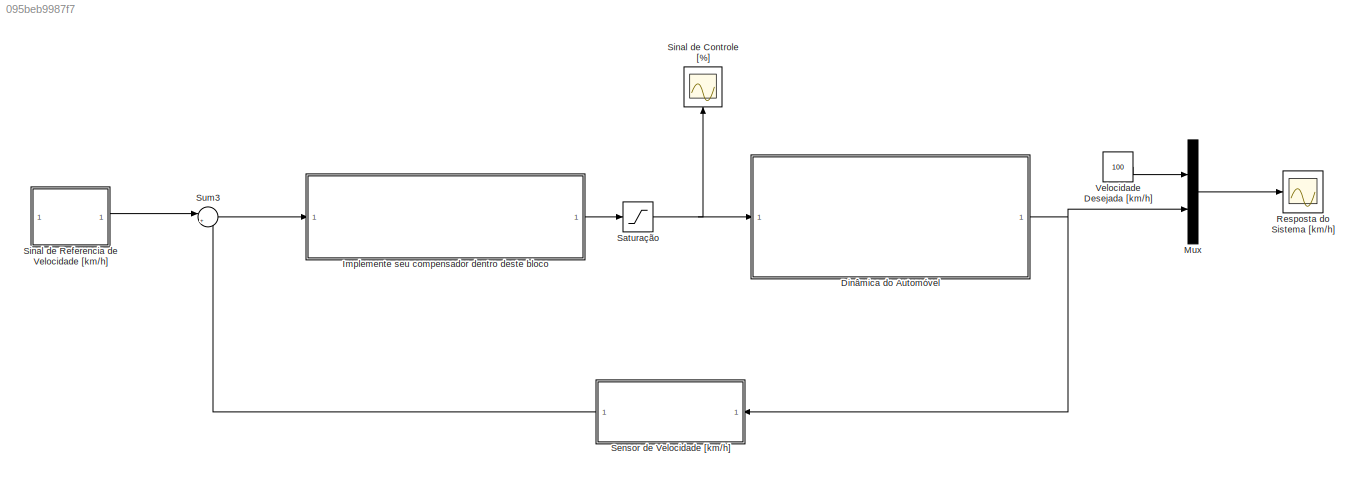
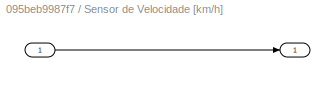
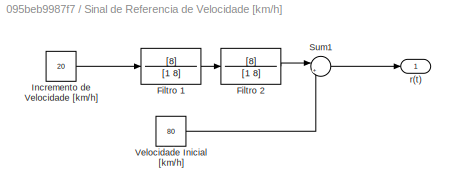
MODEL slx_095beb9987f7
KIND model
CONFIG AbsTol = auto
CONFIG EnableMultiTasking = on
CONFIG FixedStep = 1e-6
CONFIG MaxStep = 1e-3
CONFIG MinStep = auto
CONFIG RelTol = 1e-3
CONFIG SampleTimeConstraint = Unconstrained
CONFIG SolverName = ode45
CONFIG StartTime = 0.0
CONFIG StopTime = 10
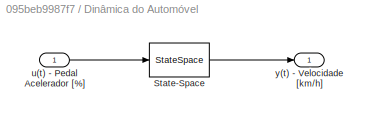
BLOCK [SubSystem] Dinâmica do Automóvel
BLOCK [StateSpace] Dinâmica do Automóvel/State-Space
  A = [0 1\n; -c -b]
  B = [ 0\n ;  a ]
  C = [1  0]
  D = 0
  InitialCondition = [80;0]
BLOCK [Inport] Dinâmica do Automóvel/u(t) - Pedal Acelerador [%]
BLOCK [Outport] Dinâmica do Automóvel/y(t) - Velocidade [km//h]
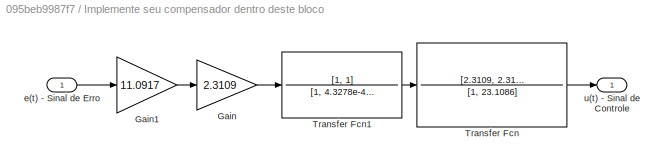
BLOCK [SubSystem] Implemente seu compensador dentro deste bloco
BLOCK [Gain] Implemente seu compensador dentro deste bloco/Gain
  Gain = 2.3109
BLOCK [Gain] Implemente seu compensador dentro deste bloco/Gain1
  Gain = 11.0917
BLOCK [TransferFcn] Implemente seu compensador dentro deste bloco/Transfer Fcn
  Denominator = [1, 23.1086]
  Numerator = [2.3109, 2.3109 * 4.3274]
BLOCK [TransferFcn] Implemente seu compensador dentro deste bloco/Transfer Fcn1
  Denominator = [1, 4.3278e-4]
  Numerator = [1, 1]
BLOCK [Inport] Implemente seu compensador dentro deste bloco/e(t) - Sinal de Erro
BLOCK [Outport] Implemente seu compensador dentro deste bloco/u(t) - Sinal de Controle
BLOCK [Mux] Mux
  DisplayOption = bar
  Inputs = 2
BLOCK [Scope] Resposta do Sistema [km//h] 
  Floating = off
  NumInputPorts = 1
  ScopeSpecificationString = Simulink.scopes.TimeScopeBlockCfg('CurrentConfiguration', extmgr.ConfigurationSet(extmgr.Configuration('Core','General UI',true,'FigureColor',[0.156862745098039 0.156862745098039 0.156862745098039]),extmgr.Configuration('Core','Source UI',true),extmgr.Configuration('Sources','WiredSimulink',true,'DataLoggingVariableName','ScopeData6','DataLoggingSaveFormat','StructureWithTime','DataLoggingDecimati...<+2892ch>
BLOCK [Saturate] Saturação
  LowerLimit = 0
  UpperLimit = 100
BLOCK [SubSystem] Sensor de Velocidade [km//h]
  NameLocation = top
BLOCK [Outport] Sensor de Velocidade [km//h]/ 
BLOCK [Inport] Sensor de Velocidade [km//h]/  
BLOCK [Scope] Sinal de Controle [%]
  Floating = off
  NameLocation = right
  NumInputPorts = 1
  ScopeSpecificationString = C++SS(StrPVP('Open','off'),StrPVP('TimeRange','auto'),StrPVP('TickLabels','OneTimeTick'),StrPVP('ShowLegends','off'),StrPVP('LimitDataPoints','off'),StrPVP('MaxDataPoints','5000'),StrPVP('SaveToWorkspace','off'),StrPVP('SaveName','ScopeData2'),StrPVP('YMin','-2.267'),StrPVP('YMax','20.40296'),StrPVP('BlockParamSampleInput','off'),StrPVP('BlockParamSampleTime','-1'),StrPVP('ZoomMode','on'),StrPVP('...<+583ch>
BLOCK [SubSystem] Sinal de Referencia de Velocidade [km//h]
BLOCK [TransferFcn] Sinal de Referencia de Velocidade [km//h]/Filtro 1
  Denominator = [1 8]
  Numerator = [8]
BLOCK [TransferFcn] Sinal de Referencia de Velocidade [km//h]/Filtro 2
  Denominator = [1 8]
  Numerator = [8]
BLOCK [Constant] Sinal de Referencia de Velocidade [km//h]/Incremento de Velocidade [km//h]
  Value = 20
BLOCK [Sum] Sinal de Referencia de Velocidade [km//h]/Sum1
  Inputs = |++
BLOCK [Constant] Sinal de Referencia de Velocidade [km//h]/Velocidade Inicial [km//h]
  Value = 80
BLOCK [Outport] Sinal de Referencia de Velocidade [km//h]/r(t)
BLOCK [Sum] Sum3
  Inputs = |+-
BLOCK [Constant] Velocidade Desejada [km//h]
  Value = 100
LINE Dinâmica do Automóvel/State-Space:1 -> Dinâmica do Automóvel/y(t) - Velocidade [km//h]:1
LINE Dinâmica do Automóvel/u(t) - Pedal Acelerador [%]:1 -> Dinâmica do Automóvel/State-Space:1
NET Dinâmica do Automóvel:1 -> Mux:2, Sensor de Velocidade [km//h]:1
LINE Implemente seu compensador dentro deste bloco/Gain1:1 -> Implemente seu compensador dentro deste bloco/Gain:1
LINE Implemente seu compensador dentro deste bloco/Gain:1 -> Implemente seu compensador dentro deste bloco/Transfer Fcn1:1
LINE Implemente seu compensador dentro deste bloco/Transfer Fcn1:1 -> Implemente seu compensador dentro deste bloco/Transfer Fcn:1
LINE Implemente seu compensador dentro deste bloco/Transfer Fcn:1 -> Implemente seu compensador dentro deste bloco/u(t) - Sinal de Controle:1
LINE Implemente seu compensador dentro deste bloco/e(t) - Sinal de Erro:1 -> Implemente seu compensador dentro deste bloco/Gain1:1
LINE Implemente seu compensador dentro deste bloco:1 -> Saturação:1
LINE Mux:1 -> Resposta do Sistema [km//h] :1
NET Saturação:1 -> Dinâmica do Automóvel:1, Sinal de Controle [%]:1
LINE Sensor de Velocidade [km//h]/  :1 -> Sensor de Velocidade [km//h]/ :1
LINE Sensor de Velocidade [km//h]:1 -> Sum3:2
LINE Sinal de Referencia de Velocidade [km//h]/Filtro 1:1 -> Sinal de Referencia de Velocidade [km//h]/Filtro 2:1
LINE Sinal de Referencia de Velocidade [km//h]/Filtro 2:1 -> Sinal de Referencia de Velocidade [km//h]/Sum1:1
LINE Sinal de Referencia de Velocidade [km//h]/Incremento de Velocidade [km//h]:1 -> Sinal de Referencia de Velocidade [km//h]/Filtro 1:1
LINE Sinal de Referencia de Velocidade [km//h]/Sum1:1 -> Sinal de Referencia de Velocidade [km//h]/r(t):1
LINE Sinal de Referencia de Velocidade [km//h]/Velocidade Inicial [km//h]:1 -> Sinal de Referencia de Velocidade [km//h]/Sum1:2
LINE Sinal de Referencia de Velocidade [km//h]:1 -> Sum3:1
LINE Sum3:1 -> Implemente seu compensador dentro deste bloco:1
LINE Velocidade Desejada [km//h]:1 -> Mux:1
note: NET lines group one-source signal fan-out (src -> all destinations, sorted); 1:1 wires keep LINE
